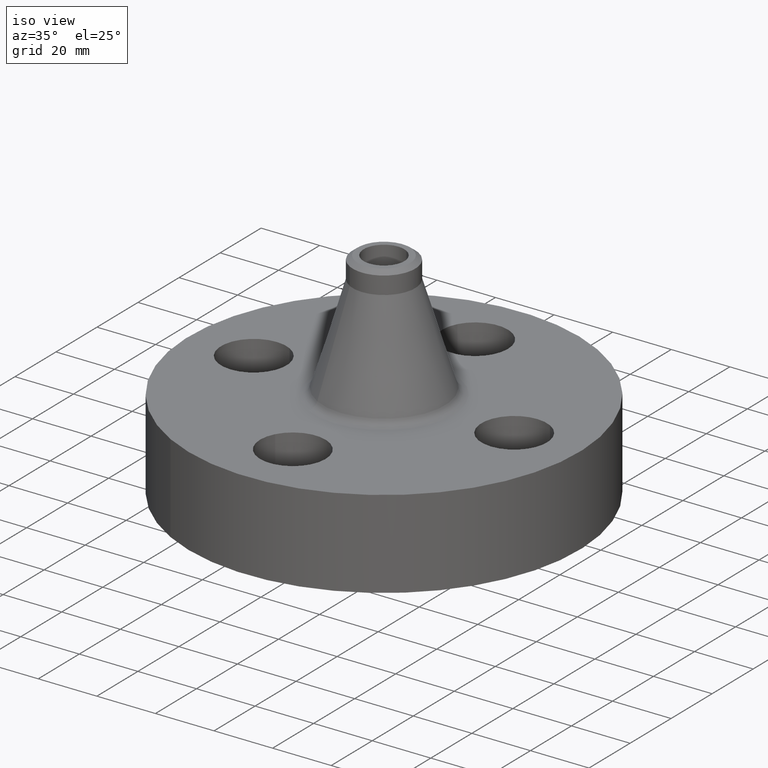
[diagram: clean part render]
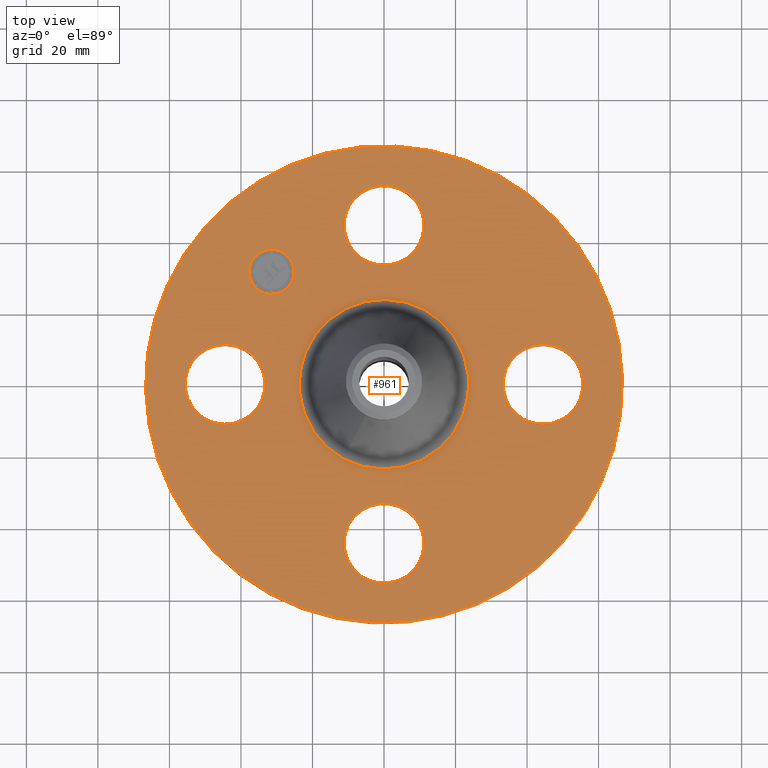
[diagram: tour spotlight — one face highlighted and labeled with its STEP entity id]
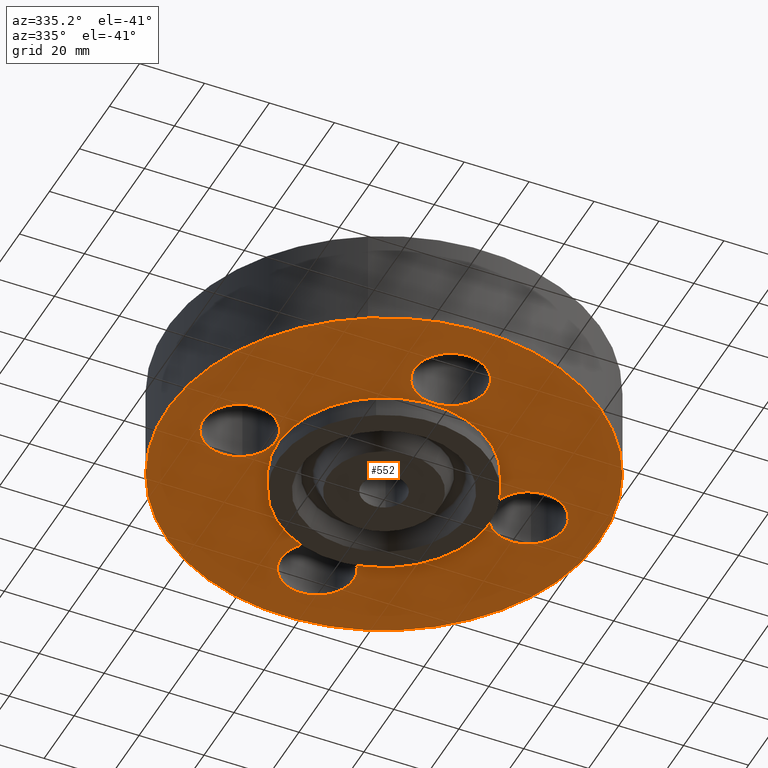
[diagram: tour spotlight — one face highlighted and labeled with its STEP entity id]
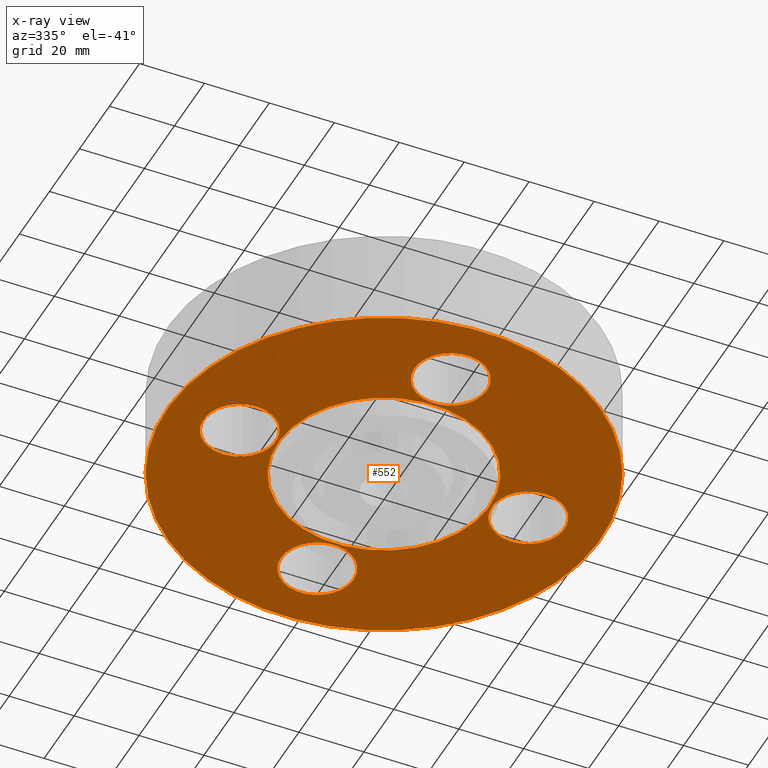
[diagram: x-ray of the same camera — body ghosted, this tour face saturated]
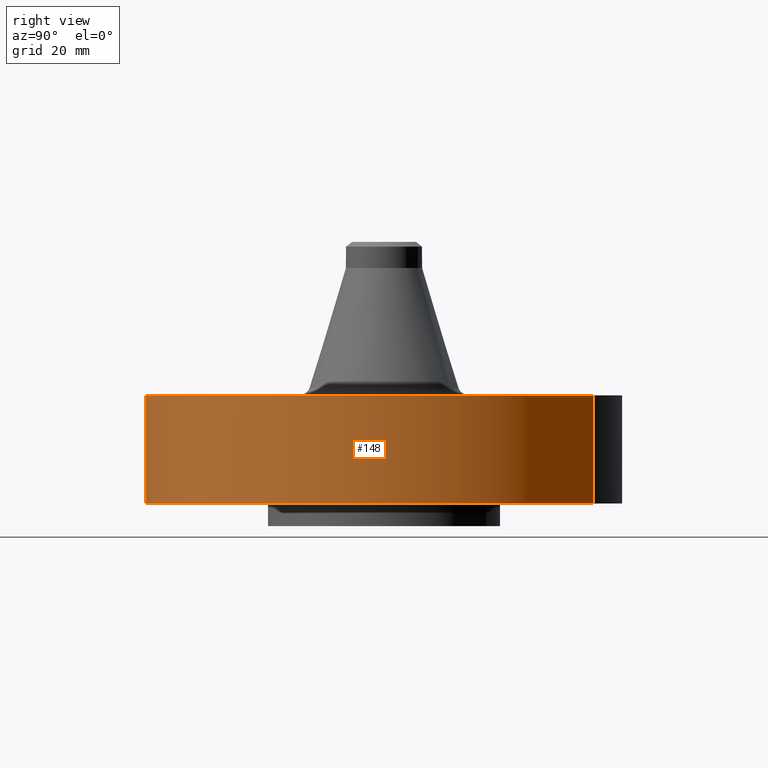
[diagram: tour spotlight — one face highlighted and labeled with its STEP entity id]
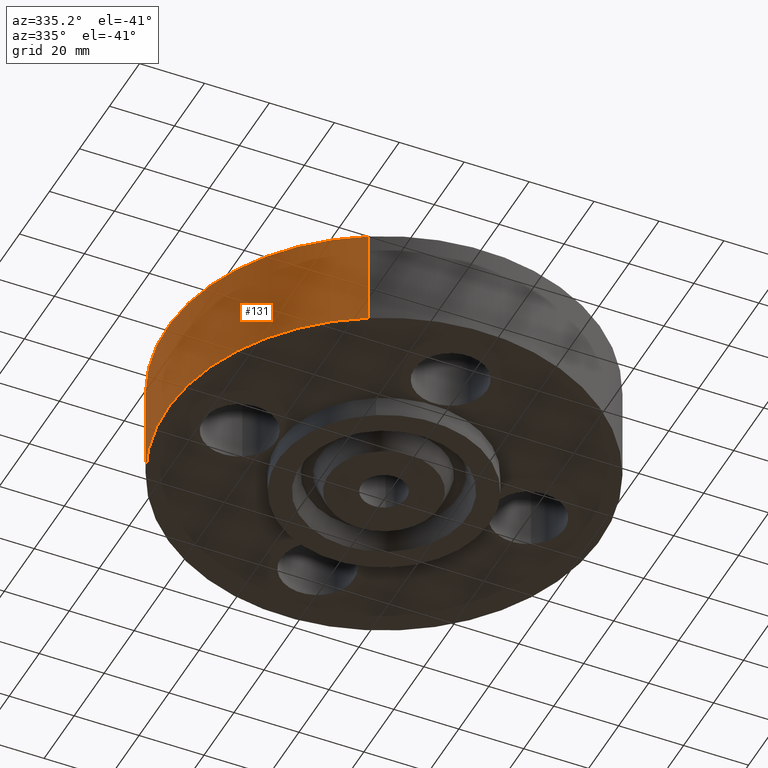
[diagram: tour spotlight — one face highlighted and labeled with its STEP entity id]
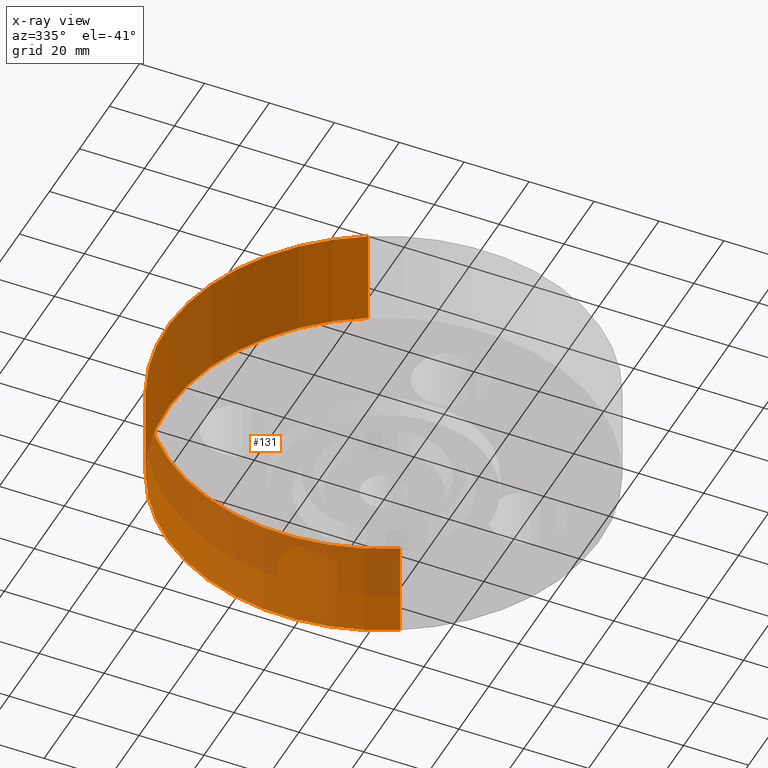
[diagram: x-ray of the same camera — body ghosted, this tour face saturated]
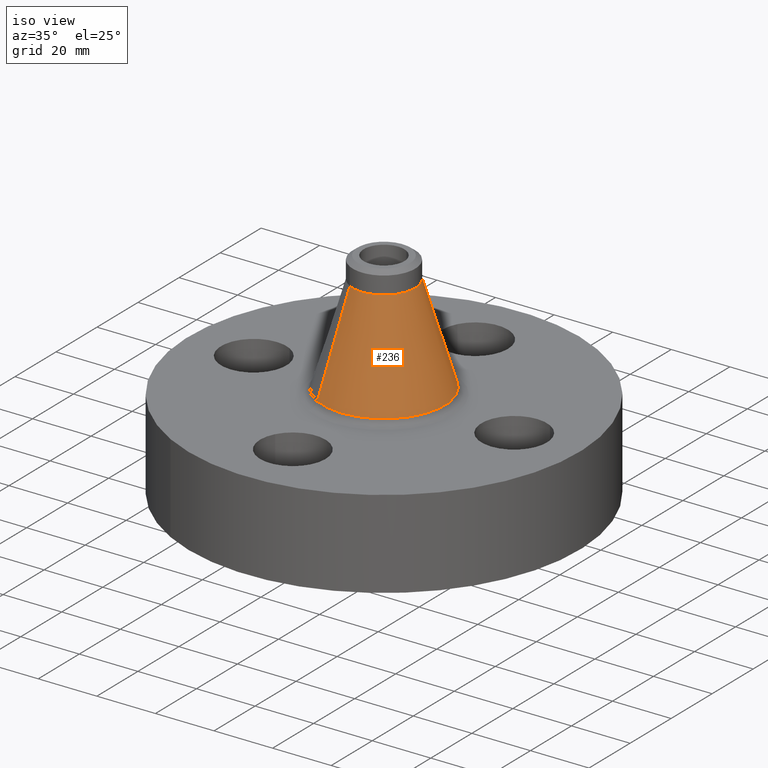
[diagram: tour spotlight — one face highlighted and labeled with its STEP entity id]
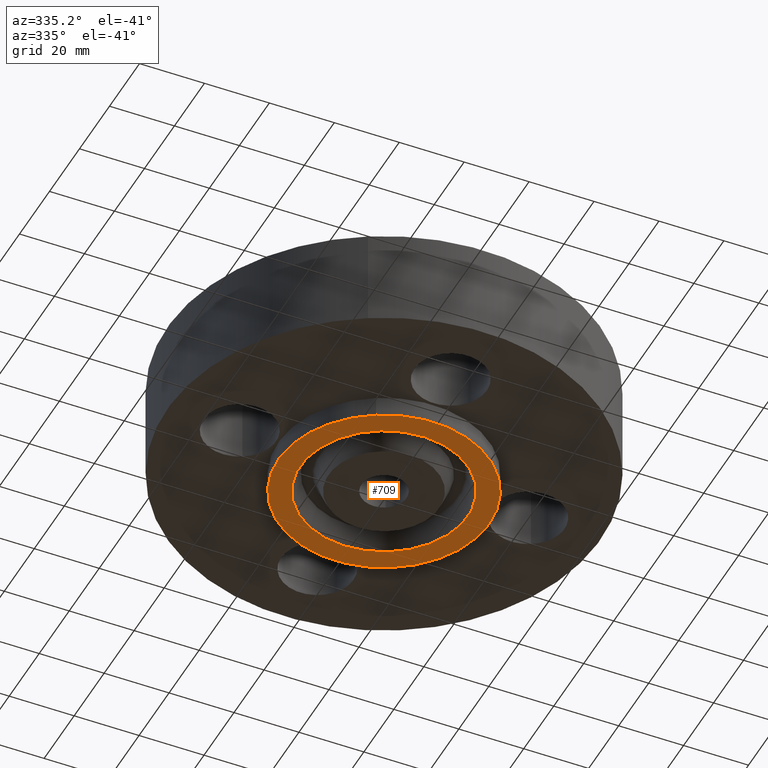
[diagram: tour spotlight — one face highlighted and labeled with its STEP entity id]
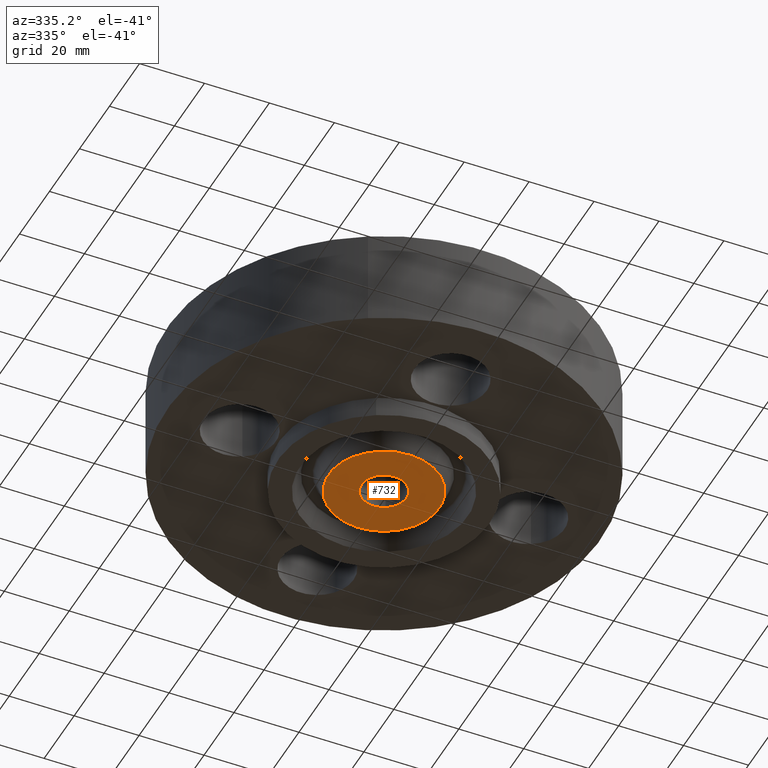
[diagram: tour spotlight — one face highlighted and labeled with its STEP entity id]
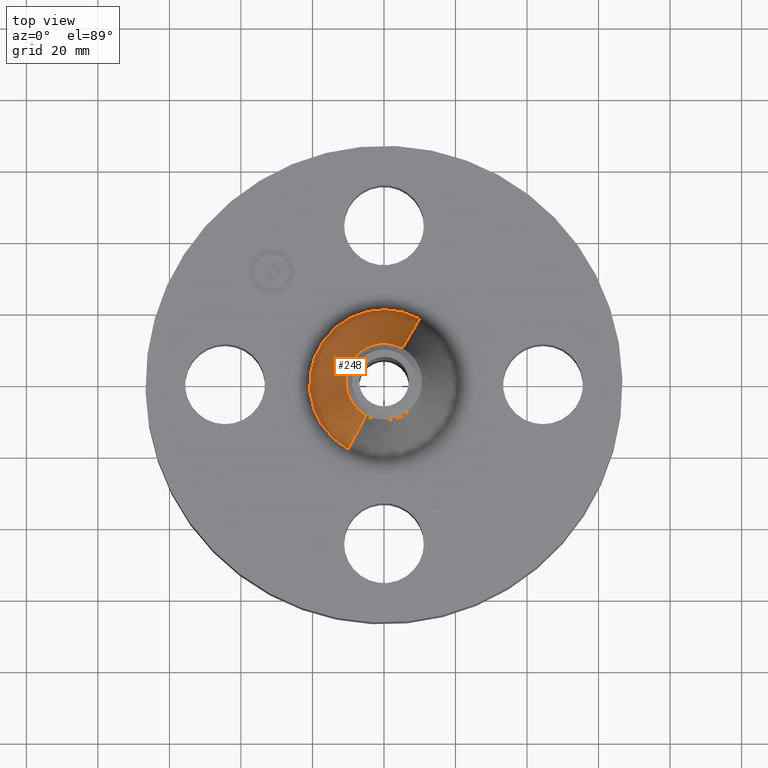
[diagram: tour spotlight — one face highlighted and labeled with its STEP entity id]
A machine part: a face-by-face anatomy tour. The part has 421 B-rep faces; the first image is the clean iso view, then the 8 largest visible faces are spotlighted one at a time (largest first), each with its STEP entity span.

Face 1 — top view, entity #961. In plain terms, the highlighted planar face has unit normal (0, 0, -1).
Definition (entity closure, byte-faithful):
#65=AXIS2_PLACEMENT_3D('Circle Axis2P3D',#63,#64,$) ;
#82=AXIS2_PLACEMENT_3D('Circle Axis2P3D',#80,#81,$) ;
#115=AXIS2_PLACEMENT_3D('Circle Axis2P3D',#113,#114,$) ;
#139=AXIS2_PLACEMENT_3D('Circle Axis2P3D',#137,#138,$) ;
#156=AXIS2_PLACEMENT_3D('Circle Axis2P3D',#154,#155,$) ;
#191=AXIS2_PLACEMENT_3D('Circle Axis2P3D',#189,#190,$) ;
#574=AXIS2_PLACEMENT_3D('Circle Axis2P3D',#572,#573,$) ;
#586=AXIS2_PLACEMENT_3D('Circle Axis2P3D',#584,#585,$) ;
#617=AXIS2_PLACEMENT_3D('Circle Axis2P3D',#615,#616,$) ;
#629=AXIS2_PLACEMENT_3D('Circle Axis2P3D',#627,#628,$) ;
#660=AXIS2_PLACEMENT_3D('Circle Axis2P3D',#658,#659,$) ;
#672=AXIS2_PLACEMENT_3D('Circle Axis2P3D',#670,#671,$) ;
#917=AXIS2_PLACEMENT_3D('Plane Axis2P3D',#914,#915,#916) ;
#945=AXIS2_PLACEMENT_3D('Circle Axis2P3D',#943,#944,$) ;
#954=AXIS2_PLACEMENT_3D('Circle Axis2P3D',#952,#953,$) ;
#46=CARTESIAN_POINT('Vertex',(-0.386136327233,1.96094723699,1.19)) ;
#60=CARTESIAN_POINT('Vertex',(0.386136327233,1.53905276302,1.19)) ;
#63=CARTESIAN_POINT('Axis2P3D Location',(0.,1.75000000001,1.19)) ;
#80=CARTESIAN_POINT('Axis2P3D Location',(0.,1.75000000001,1.19)) ;
#110=CARTESIAN_POINT('Vertex',(-1.25849203884,-2.30365422497,1.19)) ;
#113=CARTESIAN_POINT('Axis2P3D Location',(0.,0.,1.19)) ;
#117=CARTESIAN_POINT('Vertex',(1.25849203884,2.30365422497,1.19)) ;
#137=CARTESIAN_POINT('Axis2P3D Location',(0.,0.,1.19)) ;
#154=CARTESIAN_POINT('Axis2P3D Location',(0.,0.,1.19)) ;
#158=CARTESIAN_POINT('Vertex',(0.447785748808,0.81966631515,1.19)) ;
#160=CARTESIAN_POINT('Vertex',(-0.447785748808,-0.81966631515,1.19)) ;
#189=CARTESIAN_POINT('Axis2P3D Location',(0.,0.,1.19)) ;
#562=CARTESIAN_POINT('Vertex',(-1.96094723699,-0.386136327233,1.19)) ;
#569=CARTESIAN_POINT('Vertex',(-1.53905276302,0.386136327233,1.19)) ;
#572=CARTESIAN_POINT('Axis2P3D Location',(-1.75000000001,-3.21469784777E-016,1.19)) ;
#584=CARTESIAN_POINT('Axis2P3D Location',(-1.75000000001,-3.21469784777E-016,1.19)) ;
#605=CARTESIAN_POINT('Vertex',(0.386136327233,-1.96094723699,1.19)) ;
#612=CARTESIAN_POINT('Vertex',(-0.386136327233,-1.53905276302,1.19)) ;
#615=CARTESIAN_POINT('Axis2P3D Location',(2.14313189852E-016,-1.75000000001,1.19)) ;
#627=CARTESIAN_POINT('Axis2P3D Location',(2.14313189852E-016,-1.75000000001,1.19)) ;
#648=CARTESIAN_POINT('Vertex',(1.96094723699,0.386136327233,1.19)) ;
#655=CARTESIAN_POINT('Vertex',(1.53905276302,-0.386136327233,1.19)) ;
#658=CARTESIAN_POINT('Axis2P3D Location',(1.75000000001,-1.72584639625E-016,1.19)) ;
#670=CARTESIAN_POINT('Axis2P3D Location',(1.75000000001,-1.72584639625E-016,1.19)) ;
#914=CARTESIAN_POINT('Axis2P3D Location',(0.,2.62500000001,1.19)) ;
#943=CARTESIAN_POINT('Axis2P3D Location',(-1.23743686708,1.23743686708,1.19)) ;
#947=CARTESIAN_POINT('Vertex',(-1.41244579543,1.06242793874,1.19)) ;
#949=CARTESIAN_POINT('Vertex',(-1.06242793874,1.41244579543,1.19)) ;
#952=CARTESIAN_POINT('Axis2P3D Location',(-1.23743686708,1.23743686708,1.19)) ;
#64=DIRECTION('Axis2P3D Direction',(0.,-0.,-0.0393700787402)) ;
#81=DIRECTION('Axis2P3D Direction',(0.,-0.,-0.0393700787402)) ;
#114=DIRECTION('Axis2P3D Direction',(0.,0.,-0.0393700787402)) ;
#138=DIRECTION('Axis2P3D Direction',(0.,0.,-0.0393700787402)) ;
#155=DIRECTION('Axis2P3D Direction',(0.,0.,-0.0393700787402)) ;
#190=DIRECTION('Axis2P3D Direction',(0.,0.,-0.0393700787402)) ;
#573=DIRECTION('Axis2P3D Direction',(0.,0.,-0.0393700787402)) ;
#585=DIRECTION('Axis2P3D Direction',(0.,0.,-0.0393700787402)) ;
#616=DIRECTION('Axis2P3D Direction',(-0.,0.,-0.0393700787402)) ;
#628=DIRECTION('Axis2P3D Direction',(-0.,0.,-0.0393700787402)) ;
#659=DIRECTION('Axis2P3D Direction',(0.,-0.,-0.0393700787402)) ;
#671=DIRECTION('Axis2P3D Direction',(0.,-0.,-0.0393700787402)) ;
#915=DIRECTION('Axis2P3D Direction',(0.,0.,-0.0393700787402)) ;
#916=DIRECTION('Axis2P3D XDirection',(0.0393700787402,0.,0.)) ;
#944=DIRECTION('Axis2P3D Direction',(0.,0.,-0.0393700787402)) ;
#953=DIRECTION('Axis2P3D Direction',(0.,0.,-0.0393700787402)) ;
#920=ORIENTED_EDGE('',*,*,#141,.F.) ;
#921=ORIENTED_EDGE('',*,*,#119,.F.) ;
#924=ORIENTED_EDGE('',*,*,#67,.T.) ;
#925=ORIENTED_EDGE('',*,*,#84,.T.) ;
#928=ORIENTED_EDGE('',*,*,#193,.T.) ;
#929=ORIENTED_EDGE('',*,*,#162,.T.) ;
#932=ORIENTED_EDGE('',*,*,#674,.T.) ;
#933=ORIENTED_EDGE('',*,*,#662,.T.) ;
#936=ORIENTED_EDGE('',*,*,#631,.T.) ;
#937=ORIENTED_EDGE('',*,*,#619,.T.) ;
#940=ORIENTED_EDGE('',*,*,#588,.T.) ;
#941=ORIENTED_EDGE('',*,*,#576,.T.) ;
#958=ORIENTED_EDGE('',*,*,#951,.T.) ;
#959=ORIENTED_EDGE('',*,*,#956,.T.) ;
#926=FACE_BOUND('',#923,.T.) ;
#930=FACE_BOUND('',#927,.T.) ;
#934=FACE_BOUND('',#931,.T.) ;
#938=FACE_BOUND('',#935,.T.) ;
#942=FACE_BOUND('',#939,.T.) ;
#960=FACE_BOUND('',#957,.T.) ;
#961=ADVANCED_FACE('PartBody',(#922,#926,#930,#934,#938,#942,#960),#918,.F.) ;
#66=CIRCLE('generated circle',#65,0.440000000002) ;
#83=CIRCLE('generated circle',#82,0.440000000002) ;
#116=CIRCLE('generated circle',#115,2.62500000001) ;
#140=CIRCLE('generated circle',#139,2.62500000001) ;
#157=CIRCLE('generated circle',#156,0.934004788546) ;
#192=CIRCLE('generated circle',#191,0.934004788546) ;
#575=CIRCLE('generated circle',#574,0.440000000002) ;
#587=CIRCLE('generated circle',#586,0.440000000002) ;
#618=CIRCLE('generated circle',#617,0.440000000002) ;
#630=CIRCLE('generated circle',#629,0.440000000002) ;
#661=CIRCLE('generated circle',#660,0.440000000002) ;
#673=CIRCLE('generated circle',#672,0.440000000002) ;
#946=CIRCLE('generated circle',#945,0.247500000001) ;
#955=CIRCLE('generated circle',#954,0.247500000001) ;
#67=EDGE_CURVE('',#47,#61,#66,.T.) ;
#84=EDGE_CURVE('',#61,#47,#83,.T.) ;
#119=EDGE_CURVE('',#111,#118,#116,.T.) ;
#141=EDGE_CURVE('',#118,#111,#140,.T.) ;
#162=EDGE_CURVE('',#159,#161,#157,.T.) ;
#193=EDGE_CURVE('',#161,#159,#192,.T.) ;
#576=EDGE_CURVE('',#563,#570,#575,.T.) ;
#588=EDGE_CURVE('',#570,#563,#587,.T.) ;
#619=EDGE_CURVE('',#606,#613,#618,.T.) ;
#631=EDGE_CURVE('',#613,#606,#630,.T.) ;
#662=EDGE_CURVE('',#649,#656,#661,.T.) ;
#674=EDGE_CURVE('',#656,#649,#673,.T.) ;
#951=EDGE_CURVE('',#948,#950,#946,.T.) ;
#956=EDGE_CURVE('',#950,#948,#955,.T.) ;
#919=EDGE_LOOP('',(#920,#921)) ;
#923=EDGE_LOOP('',(#924,#925)) ;
#927=EDGE_LOOP('',(#928,#929)) ;
#931=EDGE_LOOP('',(#932,#933)) ;
#935=EDGE_LOOP('',(#936,#937)) ;
#939=EDGE_LOOP('',(#940,#941)) ;
#957=EDGE_LOOP('',(#958,#959)) ;
#922=FACE_OUTER_BOUND('',#919,.T.) ;
#918=PLANE('',#917) ;
#47=VERTEX_POINT('',#46) ;
#61=VERTEX_POINT('',#60) ;
#111=VERTEX_POINT('',#110) ;
#118=VERTEX_POINT('',#117) ;
#159=VERTEX_POINT('',#158) ;
#161=VERTEX_POINT('',#160) ;
#563=VERTEX_POINT('',#562) ;
#570=VERTEX_POINT('',#569) ;
#606=VERTEX_POINT('',#605) ;
#613=VERTEX_POINT('',#612) ;
#649=VERTEX_POINT('',#648) ;
#656=VERTEX_POINT('',#655) ;
#948=VERTEX_POINT('',#947) ;
#950=VERTEX_POINT('',#949) ;

Face 2 — auxiliary view, entity #552. An x-ray twin of the same camera follows (body ghosted, this face saturated) — the face is partly hidden behind the body. In plain terms, the highlighted planar face has unit normal (0, 0, -1).
Definition (entity closure, byte-faithful):
#51=AXIS2_PLACEMENT_3D('Circle Axis2P3D',#49,#50,$) ;
#77=AXIS2_PLACEMENT_3D('Circle Axis2P3D',#75,#76,$) ;
#99=AXIS2_PLACEMENT_3D('Circle Axis2P3D',#97,#98,$) ;
#134=AXIS2_PLACEMENT_3D('Circle Axis2P3D',#132,#133,$) ;
#447=AXIS2_PLACEMENT_3D('Circle Axis2P3D',#445,#446,$) ;
#471=AXIS2_PLACEMENT_3D('Circle Axis2P3D',#469,#470,$) ;
#484=AXIS2_PLACEMENT_3D('Plane Axis2P3D',#481,#482,#483) ;
#500=AXIS2_PLACEMENT_3D('Circle Axis2P3D',#498,#499,$) ;
#509=AXIS2_PLACEMENT_3D('Circle Axis2P3D',#507,#508,$) ;
#518=AXIS2_PLACEMENT_3D('Circle Axis2P3D',#516,#517,$) ;
#527=AXIS2_PLACEMENT_3D('Circle Axis2P3D',#525,#526,$) ;
#536=AXIS2_PLACEMENT_3D('Circle Axis2P3D',#534,#535,$) ;
#545=AXIS2_PLACEMENT_3D('Circle Axis2P3D',#543,#544,$) ;
#44=CARTESIAN_POINT('Vertex',(-0.386136327233,1.96094723699,0.)) ;
#49=CARTESIAN_POINT('Axis2P3D Location',(0.,1.75000000001,0.)) ;
#53=CARTESIAN_POINT('Vertex',(0.386136327233,1.53905276302,0.)) ;
#75=CARTESIAN_POINT('Axis2P3D Location',(0.,1.75000000001,0.)) ;
#97=CARTESIAN_POINT('Axis2P3D Location',(0.,0.,2.79741234551E-016)) ;
#101=CARTESIAN_POINT('Vertex',(-1.25849203884,-2.30365422497,2.79741234551E-016)) ;
#103=CARTESIAN_POINT('Vertex',(1.25849203884,2.30365422497,2.79741234551E-016)) ;
#132=CARTESIAN_POINT('Axis2P3D Location',(0.,0.,2.79741234551E-016)) ;
#442=CARTESIAN_POINT('Vertex',(-0.614383827724,-1.12462205307,0.)) ;
#445=CARTESIAN_POINT('Axis2P3D Location',(0.,0.,0.)) ;
#449=CARTESIAN_POINT('Vertex',(0.614383827724,1.12462205307,0.)) ;
#469=CARTESIAN_POINT('Axis2P3D Location',(0.,0.,0.)) ;
#481=CARTESIAN_POINT('Axis2P3D Location',(0.,1.28150000001,0.)) ;
#498=CARTESIAN_POINT('Axis2P3D Location',(1.75000000001,-2.79741234551E-016,0.)) ;
#502=CARTESIAN_POINT('Vertex',(1.96094723699,0.386136327233,0.)) ;
#504=CARTESIAN_POINT('Vertex',(1.53905276302,-0.386136327233,0.)) ;
#507=CARTESIAN_POINT('Axis2P3D Location',(1.75000000001,0.,0.)) ;
#516=CARTESIAN_POINT('Axis2P3D Location',(2.79741234551E-016,-1.75000000001,0.)) ;
#520=CARTESIAN_POINT('Vertex',(0.386136327233,-1.96094723699,0.)) ;
#522=CARTESIAN_POINT('Vertex',(-0.386136327233,-1.53905276302,0.)) ;
#525=CARTESIAN_POINT('Axis2P3D Location',(2.44773580232E-016,-1.75000000001,0.)) ;
#534=CARTESIAN_POINT('Axis2P3D Location',(-1.75000000001,-2.79741234551E-016,0.)) ;
#538=CARTESIAN_POINT('Vertex',(-1.96094723699,-0.386136327233,0.)) ;
#540=CARTESIAN_POINT('Vertex',(-1.53905276302,0.386136327233,0.)) ;
#543=CARTESIAN_POINT('Axis2P3D Location',(-1.75000000001,-2.79741234551E-016,0.)) ;
#50=DIRECTION('Axis2P3D Direction',(0.,-0.,-0.0393700787402)) ;
#76=DIRECTION('Axis2P3D Direction',(0.,-0.,-0.0393700787402)) ;
#98=DIRECTION('Axis2P3D Direction',(0.,0.,-0.0393700787402)) ;
#133=DIRECTION('Axis2P3D Direction',(0.,0.,-0.0393700787402)) ;
#446=DIRECTION('Axis2P3D Direction',(0.,0.,-0.0393700787402)) ;
#470=DIRECTION('Axis2P3D Direction',(0.,0.,-0.0393700787402)) ;
#482=DIRECTION('Axis2P3D Direction',(0.,0.,-0.0393700787402)) ;
#483=DIRECTION('Axis2P3D XDirection',(0.0393700787402,0.,0.)) ;
#499=DIRECTION('Axis2P3D Direction',(0.,0.,-0.0393700787402)) ;
#508=DIRECTION('Axis2P3D Direction',(0.,0.,-0.0393700787402)) ;
#517=DIRECTION('Axis2P3D Direction',(0.,0.,-0.0393700787402)) ;
#526=DIRECTION('Axis2P3D Direction',(0.,0.,-0.0393700787402)) ;
#535=DIRECTION('Axis2P3D Direction',(0.,0.,-0.0393700787402)) ;
#544=DIRECTION('Axis2P3D Direction',(0.,0.,-0.0393700787402)) ;
#487=ORIENTED_EDGE('',*,*,#105,.T.) ;
#488=ORIENTED_EDGE('',*,*,#136,.T.) ;
#491=ORIENTED_EDGE('',*,*,#79,.F.) ;
#492=ORIENTED_EDGE('',*,*,#55,.F.) ;
#495=ORIENTED_EDGE('',*,*,#473,.F.) ;
#496=ORIENTED_EDGE('',*,*,#451,.F.) ;
#513=ORIENTED_EDGE('',*,*,#506,.F.) ;
#514=ORIENTED_EDGE('',*,*,#511,.F.) ;
#531=ORIENTED_EDGE('',*,*,#524,.F.) ;
#532=ORIENTED_EDGE('',*,*,#529,.F.) ;
#549=ORIENTED_EDGE('',*,*,#542,.F.) ;
#550=ORIENTED_EDGE('',*,*,#547,.F.) ;
#493=FACE_BOUND('',#490,.T.) ;
#497=FACE_BOUND('',#494,.T.) ;
#515=FACE_BOUND('',#512,.T.) ;
#533=FACE_BOUND('',#530,.T.) ;
#551=FACE_BOUND('',#548,.T.) ;
#552=ADVANCED_FACE('PartBody',(#489,#493,#497,#515,#533,#551),#485,.T.) ;
#52=CIRCLE('generated circle',#51,0.440000000002) ;
#78=CIRCLE('generated circle',#77,0.440000000002) ;
#100=CIRCLE('generated circle',#99,2.62500000001) ;
#135=CIRCLE('generated circle',#134,2.62500000001) ;
#448=CIRCLE('generated circle',#447,1.28150000001) ;
#472=CIRCLE('generated circle',#471,1.28150000001) ;
#501=CIRCLE('generated circle',#500,0.440000000002) ;
#510=CIRCLE('generated circle',#509,0.440000000002) ;
#519=CIRCLE('generated circle',#518,0.440000000002) ;
#528=CIRCLE('generated circle',#527,0.440000000002) ;
#537=CIRCLE('generated circle',#536,0.440000000002) ;
#546=CIRCLE('generated circle',#545,0.440000000002) ;
#55=EDGE_CURVE('',#45,#54,#52,.T.) ;
#79=EDGE_CURVE('',#54,#45,#78,.T.) ;
#105=EDGE_CURVE('',#102,#104,#100,.T.) ;
#136=EDGE_CURVE('',#104,#102,#135,.T.) ;
#451=EDGE_CURVE('',#443,#450,#448,.T.) ;
#473=EDGE_CURVE('',#450,#443,#472,.T.) ;
#506=EDGE_CURVE('',#503,#505,#501,.T.) ;
#511=EDGE_CURVE('',#505,#503,#510,.T.) ;
#524=EDGE_CURVE('',#521,#523,#519,.T.) ;
#529=EDGE_CURVE('',#523,#521,#528,.T.) ;
#542=EDGE_CURVE('',#539,#541,#537,.T.) ;
#547=EDGE_CURVE('',#541,#539,#546,.T.) ;
#486=EDGE_LOOP('',(#487,#488)) ;
#490=EDGE_LOOP('',(#491,#492)) ;
#494=EDGE_LOOP('',(#495,#496)) ;
#512=EDGE_LOOP('',(#513,#514)) ;
#530=EDGE_LOOP('',(#531,#532)) ;
#548=EDGE_LOOP('',(#549,#550)) ;
#489=FACE_OUTER_BOUND('',#486,.T.) ;
#485=PLANE('',#484) ;
#45=VERTEX_POINT('',#44) ;
#54=VERTEX_POINT('',#53) ;
#102=VERTEX_POINT('',#101) ;
#104=VERTEX_POINT('',#103) ;
#443=VERTEX_POINT('',#442) ;
#450=VERTEX_POINT('',#449) ;
#503=VERTEX_POINT('',#502) ;
#505=VERTEX_POINT('',#504) ;
#521=VERTEX_POINT('',#520) ;
#523=VERTEX_POINT('',#522) ;
#539=VERTEX_POINT('',#538) ;
#541=VERTEX_POINT('',#540) ;

Face 3 — right view, entity #148. In plain terms, the highlighted cylindrical surface (partial cylindrical patch) has radius 66.675 mm, axis along (0, 0, -1).
Definition (entity closure, byte-faithful):
#95=AXIS2_PLACEMENT_3D('Cylinder Axis2P3D',#92,#93,#94) ;
#134=AXIS2_PLACEMENT_3D('Circle Axis2P3D',#132,#133,$) ;
#139=AXIS2_PLACEMENT_3D('Circle Axis2P3D',#137,#138,$) ;
#92=CARTESIAN_POINT('Axis2P3D Location',(0.,0.,1.31500000001)) ;
#101=CARTESIAN_POINT('Vertex',(-1.25849203884,-2.30365422497,2.79741234551E-016)) ;
#103=CARTESIAN_POINT('Vertex',(1.25849203884,2.30365422497,2.79741234551E-016)) ;
#106=CARTESIAN_POINT('Line Origine',(-1.25849203884,-2.30365422497,0.595000000002)) ;
#110=CARTESIAN_POINT('Vertex',(-1.25849203884,-2.30365422497,1.19)) ;
#117=CARTESIAN_POINT('Vertex',(1.25849203884,2.30365422497,1.19)) ;
#120=CARTESIAN_POINT('Line Origine',(1.25849203884,2.30365422497,0.595000000002)) ;
#132=CARTESIAN_POINT('Axis2P3D Location',(0.,0.,2.79741234551E-016)) ;
#137=CARTESIAN_POINT('Axis2P3D Location',(0.,0.,1.19)) ;
#93=DIRECTION('Axis2P3D Direction',(0.,0.,-0.0393700787402)) ;
#94=DIRECTION('Axis2P3D XDirection',(0.0188750212049,0.0345504945626,0.)) ;
#107=DIRECTION('Vector Direction',(0.,0.,-0.0393700787402)) ;
#121=DIRECTION('Vector Direction',(0.,0.,-0.0393700787402)) ;
#133=DIRECTION('Axis2P3D Direction',(0.,0.,-0.0393700787402)) ;
#138=DIRECTION('Axis2P3D Direction',(0.,0.,-0.0393700787402)) ;
#108=VECTOR('Line Direction',#107,0.0393700787402) ;
#122=VECTOR('Line Direction',#121,0.0393700787402) ;
#143=ORIENTED_EDGE('',*,*,#136,.F.) ;
#144=ORIENTED_EDGE('',*,*,#124,.T.) ;
#145=ORIENTED_EDGE('',*,*,#141,.T.) ;
#146=ORIENTED_EDGE('',*,*,#112,.F.) ;
#148=ADVANCED_FACE('PartBody',(#147),#96,.T.) ;
#135=CIRCLE('generated circle',#134,2.62500000001) ;
#140=CIRCLE('generated circle',#139,2.62500000001) ;
#96=CYLINDRICAL_SURFACE('generated cylinder',#95,2.62500000001) ;
#112=EDGE_CURVE('',#102,#111,#109,.F.) ;
#124=EDGE_CURVE('',#104,#118,#123,.F.) ;
#136=EDGE_CURVE('',#104,#102,#135,.T.) ;
#141=EDGE_CURVE('',#118,#111,#140,.T.) ;
#142=EDGE_LOOP('',(#143,#144,#145,#146)) ;
#147=FACE_OUTER_BOUND('',#142,.T.) ;
#109=LINE('Line',#106,#108) ;
#123=LINE('Line',#120,#122) ;
#102=VERTEX_POINT('',#101) ;
#104=VERTEX_POINT('',#103) ;
#111=VERTEX_POINT('',#110) ;
#118=VERTEX_POINT('',#117) ;

Face 4 — auxiliary view, entity #131. An x-ray twin of the same camera follows (body ghosted, this face saturated) — the face is partly hidden behind the body. In plain terms, the highlighted cylindrical surface (partial cylindrical patch) has radius 66.675 mm, axis along (0, 0, -1).
Definition (entity closure, byte-faithful):
#95=AXIS2_PLACEMENT_3D('Cylinder Axis2P3D',#92,#93,#94) ;
#99=AXIS2_PLACEMENT_3D('Circle Axis2P3D',#97,#98,$) ;
#115=AXIS2_PLACEMENT_3D('Circle Axis2P3D',#113,#114,$) ;
#92=CARTESIAN_POINT('Axis2P3D Location',(0.,0.,1.31500000001)) ;
#97=CARTESIAN_POINT('Axis2P3D Location',(0.,0.,2.79741234551E-016)) ;
#101=CARTESIAN_POINT('Vertex',(-1.25849203884,-2.30365422497,2.79741234551E-016)) ;
#103=CARTESIAN_POINT('Vertex',(1.25849203884,2.30365422497,2.79741234551E-016)) ;
#106=CARTESIAN_POINT('Line Origine',(-1.25849203884,-2.30365422497,0.595000000002)) ;
#110=CARTESIAN_POINT('Vertex',(-1.25849203884,-2.30365422497,1.19)) ;
#113=CARTESIAN_POINT('Axis2P3D Location',(0.,0.,1.19)) ;
#117=CARTESIAN_POINT('Vertex',(1.25849203884,2.30365422497,1.19)) ;
#120=CARTESIAN_POINT('Line Origine',(1.25849203884,2.30365422497,0.595000000002)) ;
#93=DIRECTION('Axis2P3D Direction',(0.,0.,-0.0393700787402)) ;
#94=DIRECTION('Axis2P3D XDirection',(0.0188750212049,0.0345504945626,0.)) ;
#98=DIRECTION('Axis2P3D Direction',(0.,0.,-0.0393700787402)) ;
#107=DIRECTION('Vector Direction',(0.,0.,-0.0393700787402)) ;
#114=DIRECTION('Axis2P3D Direction',(0.,0.,-0.0393700787402)) ;
#121=DIRECTION('Vector Direction',(0.,0.,-0.0393700787402)) ;
#108=VECTOR('Line Direction',#107,0.0393700787402) ;
#122=VECTOR('Line Direction',#121,0.0393700787402) ;
#126=ORIENTED_EDGE('',*,*,#105,.F.) ;
#127=ORIENTED_EDGE('',*,*,#112,.T.) ;
#128=ORIENTED_EDGE('',*,*,#119,.T.) ;
#129=ORIENTED_EDGE('',*,*,#124,.F.) ;
#131=ADVANCED_FACE('PartBody',(#130),#96,.T.) ;
#100=CIRCLE('generated circle',#99,2.62500000001) ;
#116=CIRCLE('generated circle',#115,2.62500000001) ;
#96=CYLINDRICAL_SURFACE('generated cylinder',#95,2.62500000001) ;
#105=EDGE_CURVE('',#102,#104,#100,.T.) ;
#112=EDGE_CURVE('',#102,#111,#109,.F.) ;
#119=EDGE_CURVE('',#111,#118,#116,.T.) ;
#124=EDGE_CURVE('',#104,#118,#123,.F.) ;
#125=EDGE_LOOP('',(#126,#127,#128,#129)) ;
#130=FACE_OUTER_BOUND('',#125,.T.) ;
#109=LINE('Line',#106,#108) ;
#123=LINE('Line',#120,#122) ;
#102=VERTEX_POINT('',#101) ;
#104=VERTEX_POINT('',#103) ;
#111=VERTEX_POINT('',#110) ;
#118=VERTEX_POINT('',#117) ;

Face 5 — iso view, entity #236. In plain terms, the highlighted conical surface has half-angle 16.871 deg.
Definition (entity closure, byte-faithful):
#172=AXIS2_PLACEMENT_3D('Circle Axis2P3D',#170,#171,$) ;
#209=AXIS2_PLACEMENT_3D('Cone Axis2P3D',#206,#207,#208) ;
#220=AXIS2_PLACEMENT_3D('Circle Axis2P3D',#218,#219,$) ;
#167=CARTESIAN_POINT('Vertex',(0.39273074544,0.718888807467,1.27517413965)) ;
#170=CARTESIAN_POINT('Axis2P3D Location',(0.,0.,1.27517413965)) ;
#174=CARTESIAN_POINT('Vertex',(-0.39273074544,-0.718888807467,1.27517413965)) ;
#206=CARTESIAN_POINT('Axis2P3D Location',(0.,0.,2.59140190821)) ;
#211=CARTESIAN_POINT('Line Origine',(0.297044735827,0.543736741731,1.93328802393)) ;
#215=CARTESIAN_POINT('Vertex',(0.201358726215,0.368584675995,2.59140190821)) ;
#218=CARTESIAN_POINT('Axis2P3D Location',(0.,0.,2.59140190821)) ;
#222=CARTESIAN_POINT('Vertex',(-0.201358726215,-0.368584675995,2.59140190821)) ;
#225=CARTESIAN_POINT('Line Origine',(-0.297044735827,-0.543736741731,1.93328802393)) ;
#171=DIRECTION('Axis2P3D Direction',(0.,0.,-0.0393700787402)) ;
#207=DIRECTION('Axis2P3D Direction',(0.,0.,-0.0393700787402)) ;
#208=DIRECTION('Axis2P3D XDirection',(-0.0188750212049,-0.0345504945626,0.)) ;
#212=DIRECTION('Vector Direction',(0.00547782377237,0.010027089157,-0.0376756423935)) ;
#219=DIRECTION('Axis2P3D Direction',(0.,0.,-0.0393700787402)) ;
#226=DIRECTION('Vector Direction',(-0.00547782377237,-0.010027089157,-0.0376756423935)) ;
#213=VECTOR('Line Direction',#212,0.0393700787402) ;
#227=VECTOR('Line Direction',#226,0.0393700787402) ;
#231=ORIENTED_EDGE('',*,*,#176,.F.) ;
#232=ORIENTED_EDGE('',*,*,#217,.T.) ;
#233=ORIENTED_EDGE('',*,*,#224,.T.) ;
#234=ORIENTED_EDGE('',*,*,#229,.F.) ;
#236=ADVANCED_FACE('PartBody',(#235),#210,.T.) ;
#173=CIRCLE('generated circle',#172,0.819169430531) ;
#221=CIRCLE('generated circle',#220,0.420000000002) ;
#210=CONICAL_SURFACE('Cone',#209,0.420000000002,0.294452025121) ;
#176=EDGE_CURVE('',#168,#175,#173,.T.) ;
#217=EDGE_CURVE('',#168,#216,#214,.F.) ;
#224=EDGE_CURVE('',#216,#223,#221,.T.) ;
#229=EDGE_CURVE('',#175,#223,#228,.F.) ;
#230=EDGE_LOOP('',(#231,#232,#233,#234)) ;
#235=FACE_OUTER_BOUND('',#230,.T.) ;
#214=LINE('Line',#211,#213) ;
#228=LINE('Line',#225,#227) ;
#168=VERTEX_POINT('',#167) ;
#175=VERTEX_POINT('',#174) ;
#216=VERTEX_POINT('',#215) ;
#223=VERTEX_POINT('',#222) ;

Face 6 — auxiliary view, entity #709. In plain terms, the highlighted planar face has unit normal (0, 0, -1).
Definition (entity closure, byte-faithful):
#431=AXIS2_PLACEMENT_3D('Circle Axis2P3D',#429,#430,$) ;
#466=AXIS2_PLACEMENT_3D('Circle Axis2P3D',#464,#465,$) ;
#685=AXIS2_PLACEMENT_3D('Plane Axis2P3D',#682,#683,#684) ;
#693=AXIS2_PLACEMENT_3D('Circle Axis2P3D',#691,#692,$) ;
#702=AXIS2_PLACEMENT_3D('Circle Axis2P3D',#700,#701,$) ;
#429=CARTESIAN_POINT('Axis2P3D Location',(0.,0.,-0.250000000001)) ;
#433=CARTESIAN_POINT('Vertex',(-0.614383827724,-1.12462205307,-0.250000000001)) ;
#435=CARTESIAN_POINT('Vertex',(0.614383827724,1.12462205307,-0.250000000001)) ;
#464=CARTESIAN_POINT('Axis2P3D Location',(0.,0.,-0.250000000001)) ;
#682=CARTESIAN_POINT('Axis2P3D Location',(0.,0.273000000001,-0.250000000001)) ;
#691=CARTESIAN_POINT('Axis2P3D Location',(3.49676543189E-017,-2.09805925913E-016,-0.250000000001)) ;
#695=CARTESIAN_POINT('Vertex',(0.487096347224,-0.891623882884,-0.250000000001)) ;
#697=CARTESIAN_POINT('Vertex',(-0.487096347224,0.891623882884,-0.250000000001)) ;
#700=CARTESIAN_POINT('Axis2P3D Location',(-3.49676543189E-017,6.99353086378E-017,-0.250000000001)) ;
#430=DIRECTION('Axis2P3D Direction',(0.,0.,-0.0393700787402)) ;
#465=DIRECTION('Axis2P3D Direction',(0.,0.,-0.0393700787402)) ;
#683=DIRECTION('Axis2P3D Direction',(0.,0.,-0.0393700787402)) ;
#684=DIRECTION('Axis2P3D XDirection',(0.0393700787402,0.,0.)) ;
#692=DIRECTION('Axis2P3D Direction',(0.,0.,-0.0393700787402)) ;
#701=DIRECTION('Axis2P3D Direction',(0.,0.,-0.0393700787402)) ;
#688=ORIENTED_EDGE('',*,*,#437,.T.) ;
#689=ORIENTED_EDGE('',*,*,#468,.T.) ;
#706=ORIENTED_EDGE('',*,*,#699,.F.) ;
#707=ORIENTED_EDGE('',*,*,#704,.F.) ;
#708=FACE_BOUND('',#705,.T.) ;
#709=ADVANCED_FACE('PartBody',(#690,#708),#686,.T.) ;
#432=CIRCLE('generated circle',#431,1.28150000001) ;
#467=CIRCLE('generated circle',#466,1.28150000001) ;
#694=CIRCLE('generated circle',#693,1.016) ;
#703=CIRCLE('generated circle',#702,1.016) ;
#437=EDGE_CURVE('',#434,#436,#432,.T.) ;
#468=EDGE_CURVE('',#436,#434,#467,.T.) ;
#699=EDGE_CURVE('',#696,#698,#694,.T.) ;
#704=EDGE_CURVE('',#698,#696,#703,.T.) ;
#687=EDGE_LOOP('',(#688,#689)) ;
#705=EDGE_LOOP('',(#706,#707)) ;
#690=FACE_OUTER_BOUND('',#687,.T.) ;
#686=PLANE('',#685) ;
#434=VERTEX_POINT('',#433) ;
#436=VERTEX_POINT('',#435) ;
#696=VERTEX_POINT('',#695) ;
#698=VERTEX_POINT('',#697) ;

Face 7 — auxiliary view, entity #732. In plain terms, the highlighted planar face has unit normal (0, 0, -1).
Definition (entity closure, byte-faithful):
#363=AXIS2_PLACEMENT_3D('Circle Axis2P3D',#361,#362,$) ;
#387=AXIS2_PLACEMENT_3D('Circle Axis2P3D',#385,#386,$) ;
#685=AXIS2_PLACEMENT_3D('Plane Axis2P3D',#682,#683,#684) ;
#712=AXIS2_PLACEMENT_3D('Circle Axis2P3D',#710,#711,$) ;
#721=AXIS2_PLACEMENT_3D('Circle Axis2P3D',#719,#720,$) ;
#358=CARTESIAN_POINT('Vertex',(0.130883172039,0.239580039397,-0.250000000001)) ;
#361=CARTESIAN_POINT('Axis2P3D Location',(0.,0.,-0.250000000001)) ;
#365=CARTESIAN_POINT('Vertex',(-0.130883172039,-0.239580039397,-0.250000000001)) ;
#385=CARTESIAN_POINT('Axis2P3D Location',(0.,0.,-0.250000000001)) ;
#682=CARTESIAN_POINT('Axis2P3D Location',(0.,0.273000000001,-0.250000000001)) ;
#710=CARTESIAN_POINT('Axis2P3D Location',(2.09805925913E-016,3.49676543189E-017,-0.250000000001)) ;
#714=CARTESIAN_POINT('Vertex',(-0.322173961943,0.589735481593,-0.250000000001)) ;
#716=CARTESIAN_POINT('Vertex',(0.322173961943,-0.589735481593,-0.250000000001)) ;
#719=CARTESIAN_POINT('Axis2P3D Location',(1.39870617276E-016,-3.49676543189E-017,-0.250000000001)) ;
#362=DIRECTION('Axis2P3D Direction',(0.,0.,-0.0393700787402)) ;
#386=DIRECTION('Axis2P3D Direction',(0.,0.,-0.0393700787402)) ;
#683=DIRECTION('Axis2P3D Direction',(0.,0.,-0.0393700787402)) ;
#684=DIRECTION('Axis2P3D XDirection',(0.0393700787402,0.,0.)) ;
#711=DIRECTION('Axis2P3D Direction',(0.,0.,-0.0393700787402)) ;
#720=DIRECTION('Axis2P3D Direction',(0.,0.,-0.0393700787402)) ;
#725=ORIENTED_EDGE('',*,*,#718,.T.) ;
#726=ORIENTED_EDGE('',*,*,#723,.T.) ;
#729=ORIENTED_EDGE('',*,*,#367,.F.) ;
#730=ORIENTED_EDGE('',*,*,#389,.F.) ;
#731=FACE_BOUND('',#728,.T.) ;
#732=ADVANCED_FACE('PartBody',(#727,#731),#686,.T.) ;
#364=CIRCLE('generated circle',#363,0.273000000001) ;
#388=CIRCLE('generated circle',#387,0.273000000001) ;
#713=CIRCLE('generated circle',#712,0.672000000003) ;
#722=CIRCLE('generated circle',#721,0.672000000003) ;
#367=EDGE_CURVE('',#359,#366,#364,.T.) ;
#389=EDGE_CURVE('',#366,#359,#388,.T.) ;
#718=EDGE_CURVE('',#715,#717,#713,.T.) ;
#723=EDGE_CURVE('',#717,#715,#722,.T.) ;
#724=EDGE_LOOP('',(#725,#726)) ;
#728=EDGE_LOOP('',(#729,#730)) ;
#727=FACE_OUTER_BOUND('',#724,.T.) ;
#686=PLANE('',#685) ;
#359=VERTEX_POINT('',#358) ;
#366=VERTEX_POINT('',#365) ;
#715=VERTEX_POINT('',#714) ;
#717=VERTEX_POINT('',#716) ;

Face 8 — top view, entity #248. In plain terms, the highlighted conical surface has half-angle 16.871 deg.
Definition (entity closure, byte-faithful):
#196=AXIS2_PLACEMENT_3D('Circle Axis2P3D',#194,#195,$) ;
#209=AXIS2_PLACEMENT_3D('Cone Axis2P3D',#206,#207,#208) ;
#239=AXIS2_PLACEMENT_3D('Circle Axis2P3D',#237,#238,$) ;
#167=CARTESIAN_POINT('Vertex',(0.39273074544,0.718888807467,1.27517413965)) ;
#174=CARTESIAN_POINT('Vertex',(-0.39273074544,-0.718888807467,1.27517413965)) ;
#194=CARTESIAN_POINT('Axis2P3D Location',(0.,0.,1.27517413965)) ;
#206=CARTESIAN_POINT('Axis2P3D Location',(0.,0.,2.59140190821)) ;
#211=CARTESIAN_POINT('Line Origine',(0.297044735827,0.543736741731,1.93328802393)) ;
#215=CARTESIAN_POINT('Vertex',(0.201358726215,0.368584675995,2.59140190821)) ;
#222=CARTESIAN_POINT('Vertex',(-0.201358726215,-0.368584675995,2.59140190821)) ;
#225=CARTESIAN_POINT('Line Origine',(-0.297044735827,-0.543736741731,1.93328802393)) ;
#237=CARTESIAN_POINT('Axis2P3D Location',(0.,0.,2.59140190821)) ;
#195=DIRECTION('Axis2P3D Direction',(0.,0.,-0.0393700787402)) ;
#207=DIRECTION('Axis2P3D Direction',(0.,0.,-0.0393700787402)) ;
#208=DIRECTION('Axis2P3D XDirection',(-0.0188750212049,-0.0345504945626,0.)) ;
#212=DIRECTION('Vector Direction',(0.00547782377237,0.010027089157,-0.0376756423935)) ;
#226=DIRECTION('Vector Direction',(-0.00547782377237,-0.010027089157,-0.0376756423935)) ;
#238=DIRECTION('Axis2P3D Direction',(0.,0.,-0.0393700787402)) ;
#213=VECTOR('Line Direction',#212,0.0393700787402) ;
#227=VECTOR('Line Direction',#226,0.0393700787402) ;
#243=ORIENTED_EDGE('',*,*,#198,.F.) ;
#244=ORIENTED_EDGE('',*,*,#229,.T.) ;
#245=ORIENTED_EDGE('',*,*,#241,.T.) ;
#246=ORIENTED_EDGE('',*,*,#217,.F.) ;
#248=ADVANCED_FACE('PartBody',(#247),#210,.T.) ;
#197=CIRCLE('generated circle',#196,0.819169430531) ;
#240=CIRCLE('generated circle',#239,0.420000000002) ;
#210=CONICAL_SURFACE('Cone',#209,0.420000000002,0.294452025121) ;
#198=EDGE_CURVE('',#175,#168,#197,.T.) ;
#217=EDGE_CURVE('',#168,#216,#214,.F.) ;
#229=EDGE_CURVE('',#175,#223,#228,.F.) ;
#241=EDGE_CURVE('',#223,#216,#240,.T.) ;
#242=EDGE_LOOP('',(#243,#244,#245,#246)) ;
#247=FACE_OUTER_BOUND('',#242,.T.) ;
#214=LINE('Line',#211,#213) ;
#228=LINE('Line',#225,#227) ;
#168=VERTEX_POINT('',#167) ;
#175=VERTEX_POINT('',#174) ;
#216=VERTEX_POINT('',#215) ;
#223=VERTEX_POINT('',#222) ;